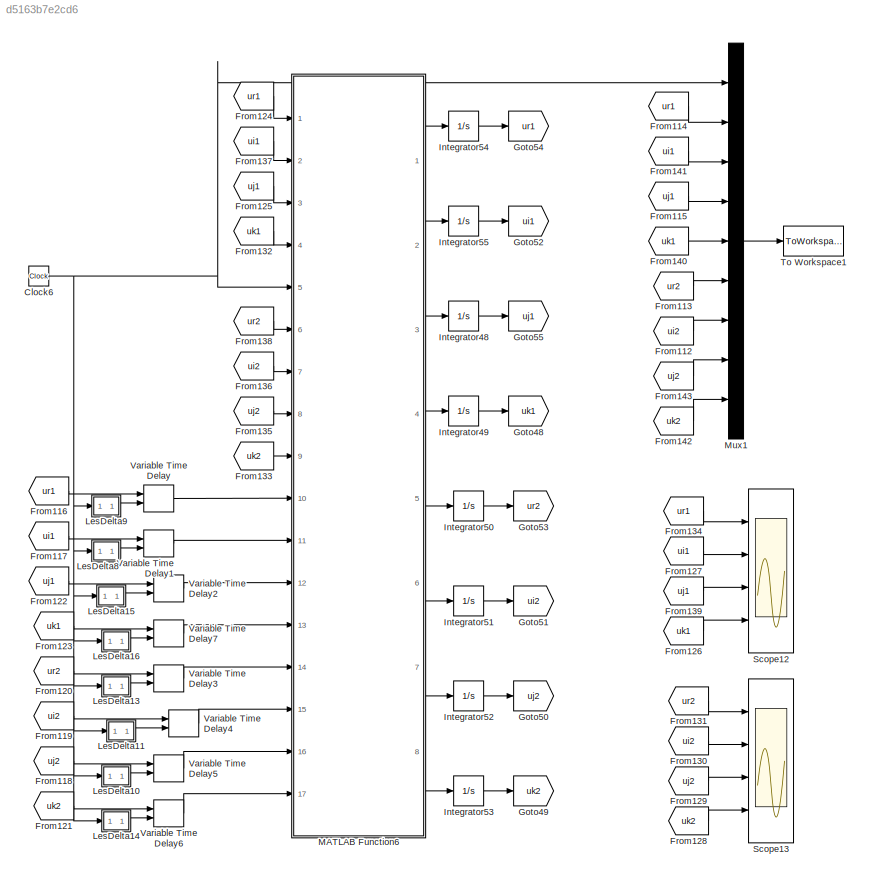
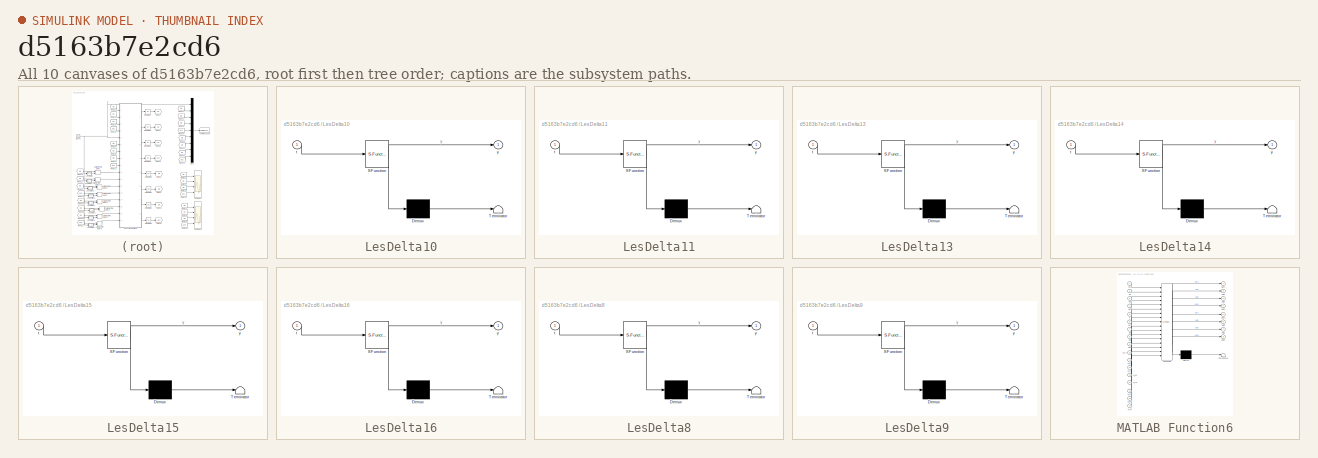
[diagram: thumbnail index - all 10 canvases of the model, root first then tree order]
MODEL slx_d5163b7e2cd6
KIND model
CONFIG AbsTol = auto
CONFIG EnableMultiTasking = off
CONFIG FixedStep = auto
CONFIG MaxStep = 1e-4
CONFIG MinStep = auto
CONFIG RelTol = 1e-4
CONFIG SampleTimeConstraint = Unconstrained
CONFIG Solver = VariableStepAuto
CONFIG SolverName = VariableStepAuto
CONFIG StartTime = 0.0
CONFIG StopTime = 50
BLOCK [Clock] Clock6
BLOCK [From] From112
  GotoTag = ui2
  TagVisibility = global
BLOCK [From] From113
  GotoTag = ur2
  TagVisibility = global
BLOCK [From] From114
  GotoTag = ur1
  TagVisibility = global
BLOCK [From] From115
  GotoTag = uj1
  TagVisibility = global
BLOCK [From] From116
  GotoTag = ur1
  TagVisibility = global
BLOCK [From] From117
  GotoTag = ui1
  TagVisibility = global
BLOCK [From] From118
  GotoTag = uj2
  TagVisibility = global
BLOCK [From] From119
  GotoTag = ui2
  TagVisibility = global
BLOCK [From] From120
  GotoTag = ur2
  TagVisibility = global
BLOCK [From] From121
  GotoTag = uk2
  TagVisibility = global
BLOCK [From] From122
  GotoTag = uj1
  TagVisibility = global
BLOCK [From] From123
  GotoTag = uk1
  TagVisibility = global
BLOCK [From] From124
  GotoTag = ur1
  TagVisibility = global
BLOCK [From] From125
  GotoTag = uj1
  TagVisibility = global
BLOCK [From] From126
  GotoTag = uk1
  TagVisibility = global
BLOCK [From] From127
  GotoTag = ui1
  TagVisibility = global
BLOCK [From] From128
  GotoTag = uk2
  TagVisibility = global
BLOCK [From] From129
  GotoTag = uj2
  TagVisibility = global
BLOCK [From] From130
  GotoTag = ui2
  TagVisibility = global
BLOCK [From] From131
  GotoTag = ur2
  TagVisibility = global
BLOCK [From] From132
  GotoTag = uk1
  TagVisibility = global
BLOCK [From] From133
  GotoTag = uk2
  TagVisibility = global
BLOCK [From] From134
  GotoTag = ur1
  TagVisibility = global
BLOCK [From] From135
  GotoTag = uj2
  TagVisibility = global
BLOCK [From] From136
  GotoTag = ui2
  TagVisibility = global
BLOCK [From] From137
  GotoTag = ui1
  TagVisibility = global
BLOCK [From] From138
  GotoTag = ur2
  TagVisibility = global
BLOCK [From] From139
  GotoTag = uj1
  TagVisibility = global
BLOCK [From] From140
  GotoTag = uk1
  TagVisibility = global
BLOCK [From] From141
  GotoTag = ui1
  TagVisibility = global
BLOCK [From] From142
  GotoTag = uk2
  TagVisibility = global
BLOCK [From] From143
  GotoTag = uj2
  TagVisibility = global
BLOCK [Goto] Goto48
  GotoTag = uk1
  TagVisibility = global
BLOCK [Goto] Goto49
  GotoTag = uk2
  TagVisibility = global
BLOCK [Goto] Goto50
  GotoTag = uj2
  TagVisibility = global
BLOCK [Goto] Goto51
  GotoTag = ui2
  TagVisibility = global
BLOCK [Goto] Goto52
  GotoTag = ui1
  TagVisibility = global
BLOCK [Goto] Goto53
  GotoTag = ur2
  TagVisibility = global
BLOCK [Goto] Goto54
  GotoTag = ur1
  TagVisibility = global
BLOCK [Goto] Goto55
  GotoTag = uj1
  TagVisibility = global
BLOCK [Integrator] Integrator48
  Ports = [1, 1]
BLOCK [Integrator] Integrator49
  Ports = [1, 1]
BLOCK [Integrator] Integrator50
  Ports = [1, 1]
BLOCK [Integrator] Integrator51
  Ports = [1, 1]
BLOCK [Integrator] Integrator52
  Ports = [1, 1]
BLOCK [Integrator] Integrator53
  Ports = [1, 1]
BLOCK [Integrator] Integrator54
  Ports = [1, 1]
BLOCK [Integrator] Integrator55
  Ports = [1, 1]
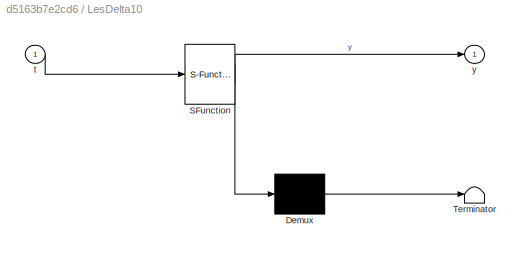
BLOCK [SubSystem] LesDelta10
  ErrorFcn = Stateflow.Translate.translate
  PermitHierarchicalResolution = ExplicitOnly
  Ports = [1, 1]
  RequestExecContextInheritance = off
  SFBlockType = MATLAB Function
  TreatAsAtomicUnit = on
BLOCK [Demux] LesDelta10/ Demux 
  Outputs = 1
  Ports = [1, 1]
BLOCK [S-Function] LesDelta10/ SFunction 
  EnableBusSupport = on
  FunctionName = sf_sfun
  PortCounts = [1 2]
  Ports = [1, 2]
  SFcnIsStateOwnerBlock = off
  SFunctionDeploymentMode = off
  Tag = Stateflow S-Function Final 15
BLOCK [Terminator] LesDelta10/ Terminator 
BLOCK [Inport] LesDelta10/t
  IconDisplay = Port number
BLOCK [Outport] LesDelta10/y
  IconDisplay = Port number
BLOCK [SubSystem] LesDelta11
  ErrorFcn = Stateflow.Translate.translate
  PermitHierarchicalResolution = ExplicitOnly
  Ports = [1, 1]
  RequestExecContextInheritance = off
  SFBlockType = MATLAB Function
  TreatAsAtomicUnit = on
BLOCK [Demux] LesDelta11/ Demux 
  Outputs = 1
  Ports = [1, 1]
BLOCK [S-Function] LesDelta11/ SFunction 
  EnableBusSupport = on
  FunctionName = sf_sfun
  PortCounts = [1 2]
  Ports = [1, 2]
  SFcnIsStateOwnerBlock = off
  SFunctionDeploymentMode = off
  Tag = Stateflow S-Function Final 16
BLOCK [Terminator] LesDelta11/ Terminator 
BLOCK [Inport] LesDelta11/t
  IconDisplay = Port number
BLOCK [Outport] LesDelta11/y
  IconDisplay = Port number
BLOCK [SubSystem] LesDelta13
  ErrorFcn = Stateflow.Translate.translate
  PermitHierarchicalResolution = ExplicitOnly
  Ports = [1, 1]
  RequestExecContextInheritance = off
  SFBlockType = MATLAB Function
  TreatAsAtomicUnit = on
BLOCK [Demux] LesDelta13/ Demux 
  Outputs = 1
  Ports = [1, 1]
BLOCK [S-Function] LesDelta13/ SFunction 
  EnableBusSupport = on
  FunctionName = sf_sfun
  PortCounts = [1 2]
  Ports = [1, 2]
  SFcnIsStateOwnerBlock = off
  SFunctionDeploymentMode = off
  Tag = Stateflow S-Function Final 17
BLOCK [Terminator] LesDelta13/ Terminator 
BLOCK [Inport] LesDelta13/t
  IconDisplay = Port number
BLOCK [Outport] LesDelta13/y
  IconDisplay = Port number
BLOCK [SubSystem] LesDelta14
  ErrorFcn = Stateflow.Translate.translate
  PermitHierarchicalResolution = ExplicitOnly
  Ports = [1, 1]
  RequestExecContextInheritance = off
  SFBlockType = MATLAB Function
  TreatAsAtomicUnit = on
BLOCK [Demux] LesDelta14/ Demux 
  Outputs = 1
  Ports = [1, 1]
BLOCK [S-Function] LesDelta14/ SFunction 
  EnableBusSupport = on
  FunctionName = sf_sfun
  PortCounts = [1 2]
  Ports = [1, 2]
  SFcnIsStateOwnerBlock = off
  SFunctionDeploymentMode = off
  Tag = Stateflow S-Function Final 18
BLOCK [Terminator] LesDelta14/ Terminator 
BLOCK [Inport] LesDelta14/t
  IconDisplay = Port number
BLOCK [Outport] LesDelta14/y
  IconDisplay = Port number
BLOCK [SubSystem] LesDelta15
  ErrorFcn = Stateflow.Translate.translate
  PermitHierarchicalResolution = ExplicitOnly
  Ports = [1, 1]
  RequestExecContextInheritance = off
  SFBlockType = MATLAB Function
  TreatAsAtomicUnit = on
BLOCK [Demux] LesDelta15/ Demux 
  Outputs = 1
  Ports = [1, 1]
BLOCK [S-Function] LesDelta15/ SFunction 
  EnableBusSupport = on
  FunctionName = sf_sfun
  PortCounts = [1 2]
  Ports = [1, 2]
  SFcnIsStateOwnerBlock = off
  SFunctionDeploymentMode = off
  Tag = Stateflow S-Function Final 19
BLOCK [Terminator] LesDelta15/ Terminator 
BLOCK [Inport] LesDelta15/t
  IconDisplay = Port number
BLOCK [Outport] LesDelta15/y
  IconDisplay = Port number
BLOCK [SubSystem] LesDelta16
  ErrorFcn = Stateflow.Translate.translate
  PermitHierarchicalResolution = ExplicitOnly
  Ports = [1, 1]
  RequestExecContextInheritance = off
  SFBlockType = MATLAB Function
  TreatAsAtomicUnit = on
BLOCK [Demux] LesDelta16/ Demux 
  Outputs = 1
  Ports = [1, 1]
BLOCK [S-Function] LesDelta16/ SFunction 
  EnableBusSupport = on
  FunctionName = sf_sfun
  PortCounts = [1 2]
  Ports = [1, 2]
  SFcnIsStateOwnerBlock = off
  SFunctionDeploymentMode = off
  Tag = Stateflow S-Function Final 20
BLOCK [Terminator] LesDelta16/ Terminator 
BLOCK [Inport] LesDelta16/t
  IconDisplay = Port number
BLOCK [Outport] LesDelta16/y
  IconDisplay = Port number
BLOCK [SubSystem] LesDelta8
  ErrorFcn = Stateflow.Translate.translate
  PermitHierarchicalResolution = ExplicitOnly
  Ports = [1, 1]
  RequestExecContextInheritance = off
  SFBlockType = MATLAB Function
  TreatAsAtomicUnit = on
BLOCK [Demux] LesDelta8/ Demux 
  Outputs = 1
  Ports = [1, 1]
BLOCK [S-Function] LesDelta8/ SFunction 
  EnableBusSupport = on
  FunctionName = sf_sfun
  PortCounts = [1 2]
  Ports = [1, 2]
  SFcnIsStateOwnerBlock = off
  SFunctionDeploymentMode = off
  Tag = Stateflow S-Function Final 21
BLOCK [Terminator] LesDelta8/ Terminator 
BLOCK [Inport] LesDelta8/t
  IconDisplay = Port number
BLOCK [Outport] LesDelta8/y
  IconDisplay = Port number
BLOCK [SubSystem] LesDelta9
  ErrorFcn = Stateflow.Translate.translate
  PermitHierarchicalResolution = ExplicitOnly
  Ports = [1, 1]
  RequestExecContextInheritance = off
  SFBlockType = MATLAB Function
  TreatAsAtomicUnit = on
BLOCK [Demux] LesDelta9/ Demux 
  Outputs = 1
  Ports = [1, 1]
BLOCK [S-Function] LesDelta9/ SFunction 
  EnableBusSupport = on
  FunctionName = sf_sfun
  PortCounts = [1 2]
  Ports = [1, 2]
  SFcnIsStateOwnerBlock = off
  SFunctionDeploymentMode = off
  Tag = Stateflow S-Function Final 22
BLOCK [Terminator] LesDelta9/ Terminator 
BLOCK [Inport] LesDelta9/t
  IconDisplay = Port number
BLOCK [Outport] LesDelta9/y
  IconDisplay = Port number
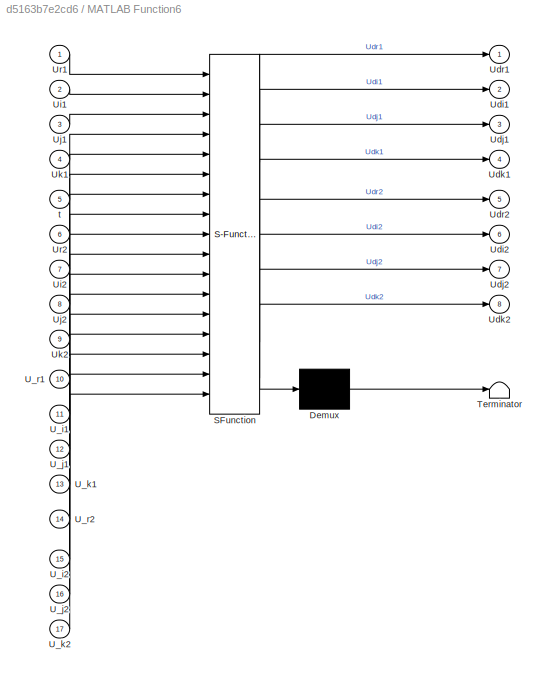
BLOCK [SubSystem] MATLAB Function6
  ErrorFcn = Stateflow.Translate.translate
  PermitHierarchicalResolution = ExplicitOnly
  Ports = [17, 8]
  RequestExecContextInheritance = off
  SFBlockType = MATLAB Function
  TreatAsAtomicUnit = on
BLOCK [Demux] MATLAB Function6/ Demux 
  Outputs = 1
  Ports = [1, 1]
BLOCK [S-Function] MATLAB Function6/ SFunction 
  EnableBusSupport = on
  FunctionName = sf_sfun
  PortCounts = [17 9]
  Ports = [17, 9]
  SFcnIsStateOwnerBlock = off
  SFunctionDeploymentMode = off
  Tag = Stateflow S-Function Final 23
BLOCK [Terminator] MATLAB Function6/ Terminator 
BLOCK [Inport] MATLAB Function6/U_i1
  IconDisplay = Port number
  Port = 11
BLOCK [Inport] MATLAB Function6/U_i2
  IconDisplay = Port number
  Port = 15
BLOCK [Inport] MATLAB Function6/U_j1
  IconDisplay = Port number
  Port = 12
BLOCK [Inport] MATLAB Function6/U_j2
  IconDisplay = Port number
  Port = 16
BLOCK [Inport] MATLAB Function6/U_k1
  IconDisplay = Port number
  Port = 13
BLOCK [Inport] MATLAB Function6/U_k2
  IconDisplay = Port number
  Port = 17
BLOCK [Inport] MATLAB Function6/U_r1
  IconDisplay = Port number
  Port = 10
BLOCK [Inport] MATLAB Function6/U_r2
  IconDisplay = Port number
  Port = 14
BLOCK [Outport] MATLAB Function6/Udi1
  IconDisplay = Port number
  Port = 2
BLOCK [Outport] MATLAB Function6/Udi2
  IconDisplay = Port number
  Port = 6
BLOCK [Outport] MATLAB Function6/Udj1
  IconDisplay = Port number
  Port = 3
BLOCK [Outport] MATLAB Function6/Udj2
  IconDisplay = Port number
  Port = 7
BLOCK [Outport] MATLAB Function6/Udk1
  IconDisplay = Port number
  Port = 4
BLOCK [Outport] MATLAB Function6/Udk2
  IconDisplay = Port number
  Port = 8
BLOCK [Outport] MATLAB Function6/Udr1
  IconDisplay = Port number
BLOCK [Outport] MATLAB Function6/Udr2
  IconDisplay = Port number
  Port = 5
BLOCK [Inport] MATLAB Function6/Ui1
  IconDisplay = Port number
  Port = 2
BLOCK [Inport] MATLAB Function6/Ui2
  IconDisplay = Port number
  Port = 7
BLOCK [Inport] MATLAB Function6/Uj1
  IconDisplay = Port number
  Port = 3
BLOCK [Inport] MATLAB Function6/Uj2
  IconDisplay = Port number
  Port = 8
BLOCK [Inport] MATLAB Function6/Uk1
  IconDisplay = Port number
  Port = 4
BLOCK [Inport] MATLAB Function6/Uk2
  IconDisplay = Port number
  Port = 9
BLOCK [Inport] MATLAB Function6/Ur1
  IconDisplay = Port number
BLOCK [Inport] MATLAB Function6/Ur2
  IconDisplay = Port number
  Port = 6
BLOCK [Inport] MATLAB Function6/t
  IconDisplay = Port number
  Port = 5
BLOCK [Mux] Mux1
  DisplayOption = bar
  Inputs = 9
  Ports = [9, 1]
BLOCK [Scope] Scope12
  Floating = off
  NumInputPorts = 4
  Ports = [4]
  ScopeSpecificationString = Simulink.scopes.TimeScopeBlockCfg('CurrentConfiguration', extmgr.ConfigurationSet(extmgr.Configuration('Core','General UI',true),extmgr.Configuration('Core','Source UI',true),extmgr.Configuration('Sources','WiredSimulink',true,'DataLoggingVariableName','ScopeData1'),extmgr.Configuration('Visuals','Time Domain',true,'SerializedDisplays',{struct('MinYLimReal','-1.60545','MaxYLimReal','0.17838','YLab...<+3493ch>
BLOCK [Scope] Scope13
  Floating = off
  NumInputPorts = 4
  Ports = [4]
  ScopeSpecificationString = Simulink.scopes.TimeScopeBlockCfg('CurrentConfiguration', extmgr.ConfigurationSet(extmgr.Configuration('Core','General UI',true),extmgr.Configuration('Core','Source UI',true),extmgr.Configuration('Sources','WiredSimulink',true),extmgr.Configuration('Visuals','Time Domain',true,'SerializedDisplays',{struct('MinYLimReal','-1.91044','MaxYLimReal','0.21227','YLabelReal','','MinYLimMag','0.00000','MaxY...<+3421ch>
BLOCK [ToWorkspace] To Workspace1
  FixptAsFi = on
  MaxDataPoints = inf
  Ports = [1]
  SampleTime = -1
  Save2DSignal = 3-D array (concatenate along third dimension)
  VariableName = Sortie1
BLOCK [VariableTransportDelay] Variable Time Delay
  MaximumDelay = 10
  Ports = [2, 1]
BLOCK [VariableTransportDelay] Variable Time Delay1
  MaximumDelay = 10
  Ports = [2, 1]
BLOCK [VariableTransportDelay] Variable Time Delay2
  MaximumDelay = 10
  Ports = [2, 1]
BLOCK [VariableTransportDelay] Variable Time Delay3
  MaximumDelay = 10
  Ports = [2, 1]
BLOCK [VariableTransportDelay] Variable Time Delay4
  MaximumDelay = 10
  Ports = [2, 1]
BLOCK [VariableTransportDelay] Variable Time Delay5
  MaximumDelay = 10
  Ports = [2, 1]
BLOCK [VariableTransportDelay] Variable Time Delay6
  MaximumDelay = 10
  Ports = [2, 1]
BLOCK [VariableTransportDelay] Variable Time Delay7
  MaximumDelay = 10
  Ports = [2, 1]
NET Clock6:1 -> LesDelta10:1, LesDelta11:1, LesDelta13:1, LesDelta14:1, LesDelta15:1, LesDelta16:1, LesDelta8:1, LesDelta9:1, MATLAB Function6:5, Mux1:1
LINE From112:1 -> Mux1:7
LINE From113:1 -> Mux1:6
LINE From114:1 -> Mux1:2
LINE From115:1 -> Mux1:4
LINE From116:1 -> Variable Time Delay:1
LINE From117:1 -> Variable Time Delay1:1
LINE From118:1 -> Variable Time Delay5:1
LINE From119:1 -> Variable Time Delay4:1
LINE From120:1 -> Variable Time Delay3:1
LINE From121:1 -> Variable Time Delay6:1
LINE From122:1 -> Variable Time Delay2:1
LINE From123:1 -> Variable Time Delay7:1
LINE From124:1 -> MATLAB Function6:1
LINE From125:1 -> MATLAB Function6:3
LINE From126:1 -> Scope12:4
LINE From127:1 -> Scope12:2
LINE From128:1 -> Scope13:4
LINE From129:1 -> Scope13:3
LINE From130:1 -> Scope13:2
LINE From131:1 -> Scope13:1
LINE From132:1 -> MATLAB Function6:4
LINE From133:1 -> MATLAB Function6:9
LINE From134:1 -> Scope12:1
LINE From135:1 -> MATLAB Function6:8
LINE From136:1 -> MATLAB Function6:7
LINE From137:1 -> MATLAB Function6:2
LINE From138:1 -> MATLAB Function6:6
LINE From139:1 -> Scope12:3
LINE From140:1 -> Mux1:5
LINE From141:1 -> Mux1:3
LINE From142:1 -> Mux1:9
LINE From143:1 -> Mux1:8
LINE Integrator48:1 -> Goto55:1
LINE Integrator49:1 -> Goto48:1
LINE Integrator50:1 -> Goto53:1
LINE Integrator51:1 -> Goto51:1
LINE Integrator52:1 -> Goto50:1
LINE Integrator53:1 -> Goto49:1
LINE Integrator54:1 -> Goto54:1
LINE Integrator55:1 -> Goto52:1
LINE LesDelta10:1 -> Variable Time Delay5:2
LINE LesDelta11:1 -> Variable Time Delay4:2
LINE LesDelta13:1 -> Variable Time Delay3:2
LINE LesDelta14:1 -> Variable Time Delay6:2
LINE LesDelta15:1 -> Variable Time Delay2:2
LINE LesDelta16:1 -> Variable Time Delay7:2
LINE LesDelta8:1 -> Variable Time Delay1:2
LINE LesDelta9:1 -> Variable Time Delay:2
LINE MATLAB Function6:1 -> Integrator54:1
LINE MATLAB Function6:2 -> Integrator55:1
LINE MATLAB Function6:3 -> Integrator48:1
LINE MATLAB Function6:4 -> Integrator49:1
LINE MATLAB Function6:5 -> Integrator50:1
LINE MATLAB Function6:6 -> Integrator51:1
LINE MATLAB Function6:7 -> Integrator52:1
LINE MATLAB Function6:8 -> Integrator53:1
LINE Mux1:1 -> To Workspace1:1
LINE Variable Time Delay1:1 -> MATLAB Function6:11
LINE Variable Time Delay2:1 -> MATLAB Function6:12
LINE Variable Time Delay3:1 -> MATLAB Function6:14
LINE Variable Time Delay4:1 -> MATLAB Function6:15
LINE Variable Time Delay5:1 -> MATLAB Function6:16
LINE Variable Time Delay6:1 -> MATLAB Function6:17
LINE Variable Time Delay7:1 -> MATLAB Function6:13
LINE Variable Time Delay:1 -> MATLAB Function6:10
note: NET lines group one-source signal fan-out (src -> all destinations, sorted); 1:1 wires keep LINE
CHART LesDelta10 states=1 transitions=1
  STATE_LABEL 'eML_blk_kernel()'
  STATE_LABEL 'SCRIPT:\nfunction y = fcn(t)\n\ny= 0.2.*(abs(cos(sin(10*pi*t))));'
CHART LesDelta11 states=1 transitions=1
  STATE_LABEL 'eML_blk_kernel()'
  STATE_LABEL 'SCRIPT:\nfunction y = fcn(t)\n\ny= 0.2.*(abs(cos(sin(10*pi*t))));'
CHART LesDelta13 states=1 transitions=1
  STATE_LABEL 'eML_blk_kernel()'
  STATE_LABEL 'SCRIPT:\nfunction y = fcn(t)\n\ny= 0.2.*(abs(cos(sin(10*pi*t))));'
CHART LesDelta14 states=1 transitions=1
  STATE_LABEL 'eML_blk_kernel()'
  STATE_LABEL 'SCRIPT:\nfunction y = fcn(t)\n\ny= 0.2.*(abs(cos(sin(10*pi*t))));'
CHART LesDelta15 states=1 transitions=1
  STATE_LABEL 'eML_blk_kernel()'
  STATE_LABEL 'SCRIPT:\nfunction y = fcn(t)\n\ny= 0.2.*(abs(cos(sin(10*pi*t))));'
CHART LesDelta16 states=1 transitions=1
  STATE_LABEL 'eML_blk_kernel()'
  STATE_LABEL 'SCRIPT:\nfunction y = fcn(t)\n\ny= 0.2.*(abs(cos(sin(10*pi*t))));'
CHART LesDelta8 states=1 transitions=1
  STATE_LABEL 'eML_blk_kernel()'
  STATE_LABEL 'SCRIPT:\nfunction y = fcn(t)\n\ny= 0.2.*(abs(cos(sin(10*pi*t))));'
CHART LesDelta9 states=1 transitions=1
  STATE_LABEL 'eML_blk_kernel()'
  STATE_LABEL 'SCRIPT:\nfunction y = fcn(t)\n\ny= 0.2.*(abs(cos(sin(10*pi*t))));'
CHART MATLAB Function6 states=1 transitions=1
  STATE_LABEL 'eML_blk_kernel()'
  STATE_LABEL 'SCRIPT:\n\nfunction [Udr1,Udi1,Udj1,Udk1, Udr2,Udi2,Udj2,Udk2 ]= fcn(Ur1,Ui1,Uj1,Uk1,t, Ur2,Ui2,Uj2,Uk2, U_r1,U_i1,U_j1,U_k1, U_r2,U_i2,U_j2,U_k2)\n\n% LES FONCTIONS QUATERNIONIQUES UTILISEES\n% Gamma1 et Gamma2 \nGamma1 = 5+cos(sin(10*pi.*t))+ Phi(t);     Gamma2 =4+ cos(sin(10*pi.*t))+ Phi(t);\n% Les fonctions Alpha\nAlpha11 = quaternion(0.3*sin(10*pi.*t), 0.4*sin(10*pi.*t), 0.3*sin(10*pi.*t), 0.2*cos(10...<+3608ch>'
